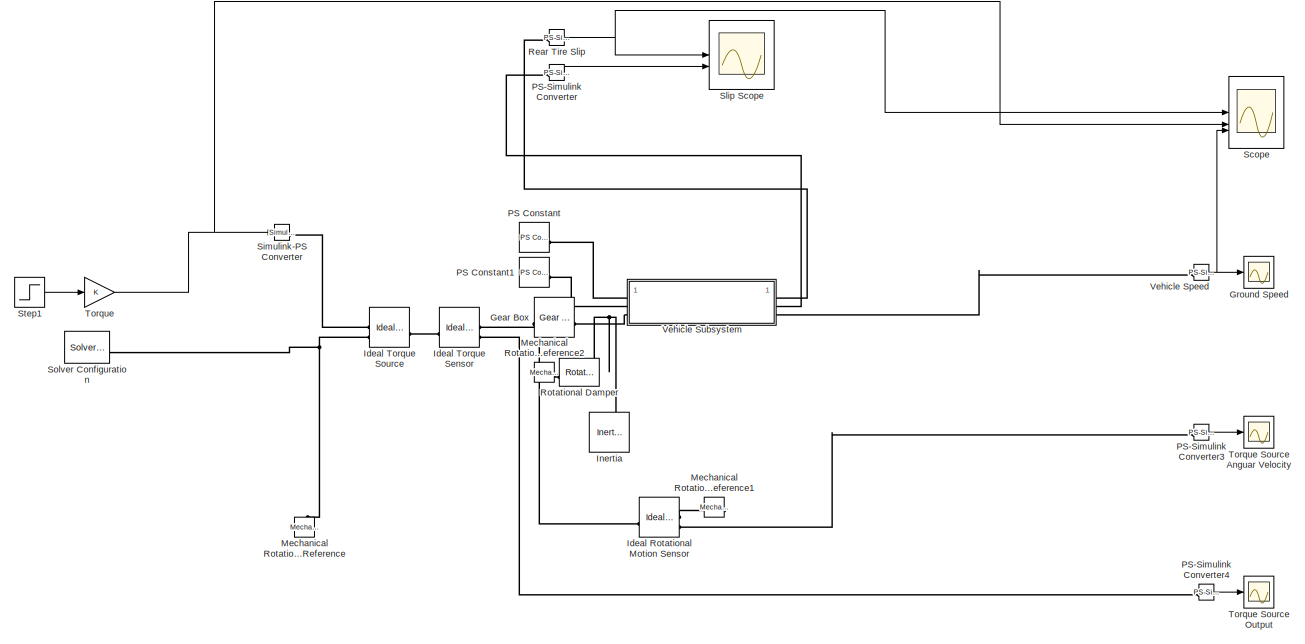
[diagram: root canvas - part 1/2, right side, full height]
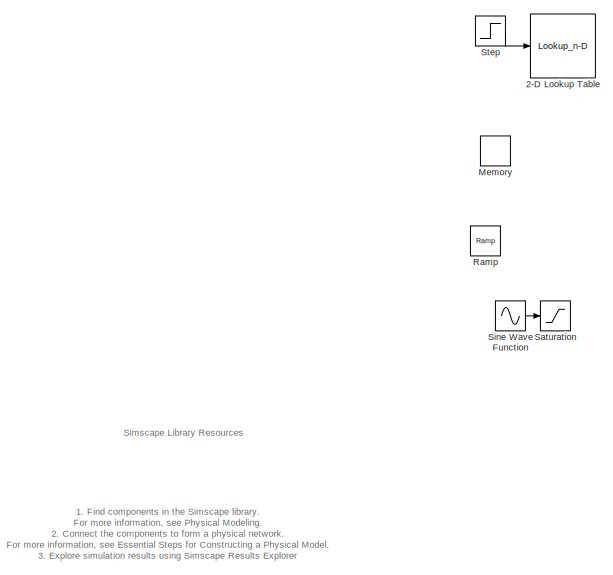
[diagram: root canvas - part 2/2, left side, full height]
MODEL slx_220c1b9e5b63
KIND model
CONFIG AbsTol = 1e-3
CONFIG EnableMultiTasking = off
CONFIG FixedStep = auto
CONFIG MaxStep = auto
CONFIG MinStep = auto
CONFIG RelTol = 1e-3
CONFIG SampleTimeConstraint = Unconstrained
CONFIG SolverName = VariableStepAuto
CONFIG StartTime = 0.0
CONFIG StopTime = 100
BLOCK [Lookup_n-D] 2-D Lookup Table
  BreakpointsForDimension1 = [0;141;216.67;220;230;500]
  BreakpointsForDimension2 = [1;100;3321;5100]
  Commented = on
  InputPortMap = u0,u1
  InternalRulePriority = Speed
  RndMeth = Simplest
  Table = [0 0 0 0;141 141 141 141;216.67 216.67 216.67 141;220 220 216.67 141;220 230 216.67 141;220 230 216.67 141]
BLOCK [Reference] Gear Box  REF=fl_lib/Mechanical/Mechanisms/Gear Box
  SourceBlock = fl_lib/Mechanical/Mechanisms/Gear Box
  SourceType = Gear Box
BLOCK [Scope] Ground Speed
  Commented = on
  Floating = off
  NumInputPorts = 1
  ScopeSpecificationString = Simulink.scopes.TimeScopeBlockCfg('CurrentConfiguration', extmgr.ConfigurationSet(extmgr.Configuration('Core','General UI',true),extmgr.Configuration('Core','Source UI',true),extmgr.Configuration('Sources','WiredSimulink',true,'DataLoggingVariableName','ScopeData2'),extmgr.Configuration('Visuals','Time Domain',true,'SerializedDisplays',{struct('MinYLimReal','-18.3687','MaxYLimReal','165.31827','YL...<+1494ch>
BLOCK [Reference] Ideal Rotational Motion Sensor  REF=fl_lib/Mechanical/Mechanical Sensors/Ideal Rotational
Motion Sensor
  SourceBlock = fl_lib/Mechanical/Mechanical Sensors/Ideal Rotational\nMotion Sensor
  SourceType = Ideal Rotational\nMotion Sensor
BLOCK [Reference] Ideal Torque Sensor  REF=fl_lib/Mechanical/Mechanical Sensors/Ideal Torque Sensor
  SourceBlock = fl_lib/Mechanical/Mechanical Sensors/Ideal Torque Sensor
  SourceType = Ideal Torque Sensor
BLOCK [Reference] Ideal Torque Source  REF=fl_lib/Mechanical/Mechanical Sources/Ideal Torque Source
  SourceBlock = fl_lib/Mechanical/Mechanical Sources/Ideal Torque Source
  SourceType = Ideal Torque Source
BLOCK [Reference] Inertia  REF=fl_lib/Mechanical/Rotational Elements/Inertia
  NameLocation = right
  SourceBlock = fl_lib/Mechanical/Rotational Elements/Inertia
  SourceType = Inertia
BLOCK [Reference] Mechanical Rotational Reference  REF=fl_lib/Mechanical/Rotational Elements/Mechanical
Rotational Reference
  NameLocation = right
  SourceBlock = fl_lib/Mechanical/Rotational Elements/Mechanical\nRotational Reference
  SourceType = Mechanical\nRotational Reference
BLOCK [Reference] Mechanical Rotational Reference1  REF=fl_lib/Mechanical/Rotational Elements/Mechanical
Rotational Reference
  NameLocation = top
  SourceBlock = fl_lib/Mechanical/Rotational Elements/Mechanical\nRotational Reference
  SourceType = Mechanical\nRotational Reference
BLOCK [Reference] Mechanical Rotational Reference2  REF=fl_lib/Mechanical/Rotational Elements/Mechanical
Rotational Reference
  SourceBlock = fl_lib/Mechanical/Rotational Elements/Mechanical\nRotational Reference
  SourceType = Mechanical\nRotational Reference
BLOCK [Memory] Memory
  Commented = on
BLOCK [Reference] PS Constant  REF=fl_lib/Physical Signals/Sources/PS Constant
  SourceBlock = fl_lib/Physical Signals/Sources/PS Constant
  SourceType = PS Constant
BLOCK [Reference] PS Constant1  REF=fl_lib/Physical Signals/Sources/PS Constant
  SourceBlock = fl_lib/Physical Signals/Sources/PS Constant
  SourceType = PS Constant
BLOCK [Reference] PS-Simulink Converter  REF=nesl_utility/PS-Simulink
Converter
  SourceBlock = nesl_utility/PS-Simulink\nConverter
  SourceType = PS-Simulink\nConverter
BLOCK [Reference] PS-Simulink Converter3  REF=nesl_utility/PS-Simulink
Converter
  SourceBlock = nesl_utility/PS-Simulink\nConverter
  SourceType = PS-Simulink\nConverter
BLOCK [Reference] PS-Simulink Converter4  REF=nesl_utility/PS-Simulink
Converter
  SourceBlock = nesl_utility/PS-Simulink\nConverter
  SourceType = PS-Simulink\nConverter
BLOCK [Reference] Ramp  REF=simulink/Sources/Ramp
  Commented = on
  SourceBlock = simulink/Sources/Ramp
  SourceType = Ramp
BLOCK [Reference] Rear Tire Slip  REF=nesl_utility/PS-Simulink
Converter
  SourceBlock = nesl_utility/PS-Simulink\nConverter
  SourceType = PS-Simulink\nConverter
BLOCK [Reference] Rotational Damper  REF=fl_lib/Mechanical/Rotational Elements/Rotational Damper
  SourceBlock = fl_lib/Mechanical/Rotational Elements/Rotational Damper
  SourceType = Rotational Damper
BLOCK [Saturate] Saturation
  Commented = on
  LowerLimit = 0
  UpperLimit = 300
BLOCK [Scope] Scope
  Floating = off
  NumInputPorts = 3
  ScopeSpecificationString = Simulink.scopes.TimeScopeBlockCfg('CurrentConfiguration', extmgr.ConfigurationSet(extmgr.Configuration('Core','General UI',true),extmgr.Configuration('Core','Source UI',true),extmgr.Configuration('Sources','WiredSimulink',true,'DataLoggingVariableName','ScopeData1'),extmgr.Configuration('Visuals','Time Domain',true,'SerializedDisplays',{struct('MinYLimReal','-0.0003','MaxYLimReal','0.00271','YLabe...<+2711ch>
BLOCK [Reference] Simulink-PS Converter  REF=nesl_utility/Simulink-PS
Converter
  SourceBlock = nesl_utility/Simulink-PS\nConverter
  SourceType = Simulink-PS\nConverter
BLOCK [Sin] Sine Wave Function
  Bias = 1
  Commented = on
  Frequency = 0.4
  SampleTime = 0
BLOCK [Scope] Slip Scope
  Commented = on
  Floating = off
  NumInputPorts = 2
  ScopeSpecificationString = Simulink.scopes.TimeScopeBlockCfg('CurrentConfiguration', extmgr.ConfigurationSet(extmgr.Configuration('Core','General UI',true),extmgr.Configuration('Core','Source UI',true),extmgr.Configuration('Sources','WiredSimulink',true,'DataLoggingVariableName','ScopeData1'),extmgr.Configuration('Visuals','Time Domain',true,'SerializedDisplays',{struct('MinYLimReal','-0.01298','MaxYLimReal','0.11685','YLab...<+2070ch>
BLOCK [Reference] Solver Configuration  REF=nesl_utility/Solver
Configuration
  SourceBlock = nesl_utility/Solver\nConfiguration
  SourceType = Solver\nConfiguration
BLOCK [Step] Step
  After = 500
  Commented = on
  SampleTime = 0
  Time = 5
BLOCK [Step] Step1
  After = 10
  SampleTime = 0
  Time = 5
BLOCK [Gain] Torque
BLOCK [Scope] Torque Source Anguar Velocity
  Commented = on
  Floating = off
  NumInputPorts = 1
  ScopeSpecificationString = Simulink.scopes.TimeScopeBlockCfg('CurrentConfiguration', extmgr.ConfigurationSet(extmgr.Configuration('Core','General UI',true),extmgr.Configuration('Core','Source UI',true),extmgr.Configuration('Sources','WiredSimulink',true,'DataLoggingVariableName','ScopeData3'),extmgr.Configuration('Visuals','Time Domain',true,'SerializedDisplays',{struct('MinYLimReal','-564.19311','MaxYLimReal','5077.73796',...<+1500ch>
BLOCK [Scope] Torque Source Output
  Commented = on
  Floating = off
  NumInputPorts = 1
  ScopeSpecificationString = Simulink.scopes.TimeScopeBlockCfg('CurrentConfiguration', extmgr.ConfigurationSet(extmgr.Configuration('Core','General UI',true),extmgr.Configuration('Core','Source UI',true),extmgr.Configuration('Sources','WiredSimulink',true,'DataLoggingVariableName','ScopeData4'),extmgr.Configuration('Visuals','Time Domain',true,'SerializedDisplays',{struct('MinYLimReal','110.75466','MaxYLimReal','113.24891','Y...<+1500ch>
BLOCK [Reference] Vehicle Speed  REF=nesl_utility/PS-Simulink
Converter
  SourceBlock = nesl_utility/PS-Simulink\nConverter
  SourceType = PS-Simulink\nConverter
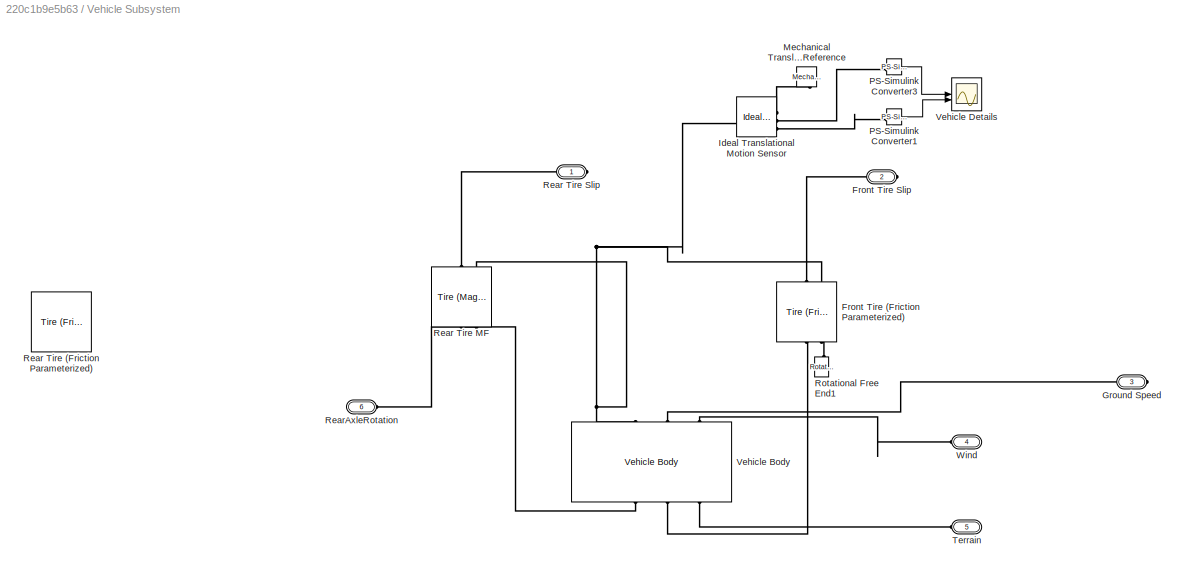
BLOCK [SubSystem] Vehicle Subsystem
BLOCK [Reference] Vehicle Subsystem/Front Tire (Friction Parameterized)  REF=sdl_lib/Tires & Vehicles/Tire (Friction
Parameterized)
  NameLocation = right
  SourceBlock = sdl_lib/Tires & Vehicles/Tire (Friction\nParameterized)
  SourceType = Tire (Friction\nParameterized)
BLOCK [PMIOPort] Vehicle Subsystem/Front Tire Slip
  Port = 2
  Side = Right
BLOCK [PMIOPort] Vehicle Subsystem/Ground Speed
  Port = 3
  Side = Right
BLOCK [Reference] Vehicle Subsystem/Ideal Translational Motion Sensor  REF=fl_lib/Mechanical/Mechanical Sensors/Ideal Translational
Motion Sensor
  SourceBlock = fl_lib/Mechanical/Mechanical Sensors/Ideal Translational\nMotion Sensor
  SourceType = Ideal Translational\nMotion Sensor
BLOCK [Reference] Vehicle Subsystem/Mechanical Translational Reference  REF=fl_lib/Mechanical/Translational
Elements/Mechanical
Translational
Reference
  NameLocation = left
  SourceBlock = fl_lib/Mechanical/Translational\nElements/Mechanical\nTranslational\nReference
  SourceType = Mechanical\nTranslational\nReference
BLOCK [Reference] Vehicle Subsystem/PS-Simulink Converter1  REF=nesl_utility/PS-Simulink
Converter
  SourceBlock = nesl_utility/PS-Simulink\nConverter
  SourceType = PS-Simulink\nConverter
BLOCK [Reference] Vehicle Subsystem/PS-Simulink Converter3  REF=nesl_utility/PS-Simulink
Converter
  SourceBlock = nesl_utility/PS-Simulink\nConverter
  SourceType = PS-Simulink\nConverter
BLOCK [Reference] Vehicle Subsystem/Rear Tire (Friction Parameterized)  REF=sdl_lib/Tires & Vehicles/Tire (Friction
Parameterized)
  NameLocation = right
  SourceBlock = sdl_lib/Tires & Vehicles/Tire (Friction\nParameterized)
  SourceType = Tire (Friction\nParameterized)
BLOCK [Reference] Vehicle Subsystem/Rear Tire MF  REF=sdl_lib/Tires & Vehicles/Tire (Magic Formula)
  NameLocation = right
  SourceBlock = sdl_lib/Tires & Vehicles/Tire (Magic Formula)
  SourceType = Tire (Magic Formula)
BLOCK [PMIOPort] Vehicle Subsystem/Rear Tire Slip
  Side = Right
BLOCK [PMIOPort] Vehicle Subsystem/RearAxleRotation
  Port = 6
  Side = Left
BLOCK [Reference] Vehicle Subsystem/Rotational Free End1  REF=fl_lib/Mechanical/Rotational Elements/Rotational Free End
  NameLocation = right
  SourceBlock = fl_lib/Mechanical/Rotational Elements/Rotational Free End
  SourceType = Rotational Free End
BLOCK [PMIOPort] Vehicle Subsystem/Terrain
  NameLocation = top
  Port = 5
  Side = Left
BLOCK [Reference] Vehicle Subsystem/Vehicle Body  REF=sdl_lib/Tires & Vehicles/Vehicle Body
  NameLocation = left
  SourceBlock = sdl_lib/Tires & Vehicles/Vehicle Body
  SourceType = Vehicle Body
BLOCK [Scope] Vehicle Subsystem/Vehicle Details
  Floating = off
  NumInputPorts = 2
  ScopeSpecificationString = Simulink.scopes.TimeScopeBlockCfg('CurrentConfiguration', extmgr.ConfigurationSet(extmgr.Configuration('Core','General UI',true),extmgr.Configuration('Core','Source UI',true),extmgr.Configuration('Sources','WiredSimulink',true,'DataLoggingVariableName','ScopeData5'),extmgr.Configuration('Visuals','Time Domain',true,'SerializedDisplays',{struct('MinYLimReal','-13.49376','MaxYLimReal','121.44386','Y...<+2126ch>
BLOCK [PMIOPort] Vehicle Subsystem/Wind
  NameLocation = top
  Port = 4
  Side = Left
ANNOTATION (root): 1. Find components in the Simscape library . For more information, see Physical Modeling . 2. Connect the components to form a physical network. For more information, see Essential Steps for Constructing a Physical Model . 3. Explore simulation results using Simscape Results Explorer
ANNOTATION (root): Simscape Library Resources
LINE PS-Simulink Converter3:1 -> Torque Source Anguar Velocity:1
LINE PS-Simulink Converter4:1 -> Torque Source Output:1
LINE PS-Simulink Converter:1 -> Slip Scope:2
NET Rear Tire Slip:1 -> Scope:1, Slip Scope:1
LINE Sine Wave Function:1 -> Saturation:1
LINE Step1:1 -> Torque:1
LINE Step:1 -> 2-D Lookup Table:1
NET Torque:1 -> Scope:2, Simulink-PS Converter:1
NET Vehicle Speed:1 -> Ground Speed:1, Scope:3
LINE Vehicle Subsystem/PS-Simulink Converter1:1 -> Vehicle Subsystem/Vehicle Details:2
LINE Vehicle Subsystem/PS-Simulink Converter3:1 -> Vehicle Subsystem/Vehicle Details:1
PNET net1: Gear Box:LConn1 -- Ideal Rotational Motion Sensor:LConn1 -- Ideal Torque Sensor:RConn1
PNET net2: Gear Box:RConn1 -- Inertia:LConn1 -- Rotational Damper:RConn1 -- Vehicle Subsystem:LConn3
PLINE Ideal Rotational Motion Sensor:RConn1 -- Mechanical Rotational Reference1:LConn1
PLINE Ideal Rotational Motion Sensor:RConn2 -- PS-Simulink Converter3:LConn1
PLINE Ideal Torque Sensor:LConn1 -- Ideal Torque Source:LConn1
PLINE Ideal Torque Sensor:RConn2 -- PS-Simulink Converter4:LConn1
PLINE Ideal Torque Source:RConn1 -- Simulink-PS Converter:RConn1
PNET net3: Ideal Torque Source:RConn2 -- Mechanical Rotational Reference:LConn1 -- Solver Configuration:RConn1
PLINE Mechanical Rotational Reference2:LConn1 -- Rotational Damper:LConn1
PLINE PS Constant1:RConn1 -- Vehicle Subsystem:LConn2
PLINE PS Constant:RConn1 -- Vehicle Subsystem:LConn1
PLINE PS-Simulink Converter:LConn1 -- Vehicle Subsystem:RConn2
PLINE Rear Tire Slip:LConn1 -- Vehicle Subsystem:RConn1
PLINE Vehicle Speed:LConn1 -- Vehicle Subsystem:RConn3
PLINE Vehicle Subsystem/Front Tire (Friction Parameterized):LConn1 -- Vehicle Subsystem/Vehicle Body:RConn2
PLINE Vehicle Subsystem/Front Tire (Friction Parameterized):LConn2 -- Vehicle Subsystem/Rotational Free End1:LConn1
PLINE Vehicle Subsystem/Front Tire (Friction Parameterized):RConn1 -- Vehicle Subsystem/Front Tire Slip:RConn1
PNET net4: Vehicle Subsystem/Front Tire (Friction Parameterized):RConn2 -- Vehicle Subsystem/Ideal Translational Motion Sensor:LConn1 -- Vehicle Subsystem/Rear Tire MF:RConn2 -- Vehicle Subsystem/Vehicle Body:LConn1
PLINE Vehicle Subsystem/Ground Speed:RConn1 -- Vehicle Subsystem/Vehicle Body:LConn2
PLINE Vehicle Subsystem/Ideal Translational Motion Sensor:RConn1 -- Vehicle Subsystem/Mechanical Translational Reference:LConn1
PLINE Vehicle Subsystem/Ideal Translational Motion Sensor:RConn2 -- Vehicle Subsystem/PS-Simulink Converter3:LConn1
PLINE Vehicle Subsystem/Ideal Translational Motion Sensor:RConn3 -- Vehicle Subsystem/PS-Simulink Converter1:LConn1
PLINE Vehicle Subsystem/Rear Tire MF:LConn1 -- Vehicle Subsystem/Vehicle Body:RConn1
PLINE Vehicle Subsystem/Rear Tire MF:LConn2 -- Vehicle Subsystem/RearAxleRotation:RConn1
PLINE Vehicle Subsystem/Rear Tire MF:RConn1 -- Vehicle Subsystem/Rear Tire Slip:RConn1
PLINE Vehicle Subsystem/Terrain:RConn1 -- Vehicle Subsystem/Vehicle Body:RConn3
PLINE Vehicle Subsystem/Vehicle Body:LConn3 -- Vehicle Subsystem/Wind:RConn1
note: NET lines group one-source signal fan-out (src -> all destinations, sorted); 1:1 wires keep LINE; PNET lines group multi-terminal physical nets as a canonical sorted terminal list (undirected conserving connections); 2-terminal nets keep the pairwise PLINE form
